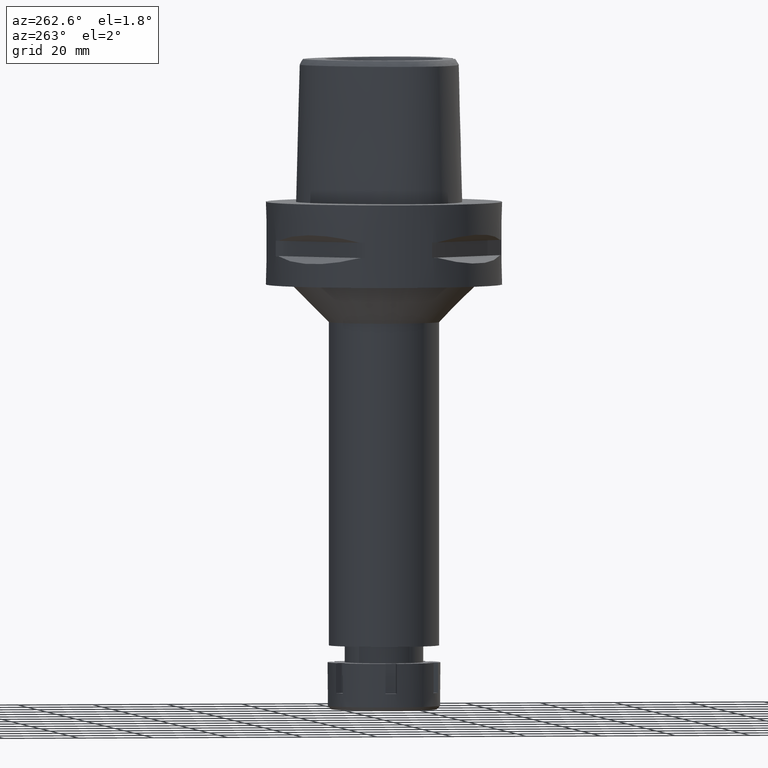
[diagram: clean part render]
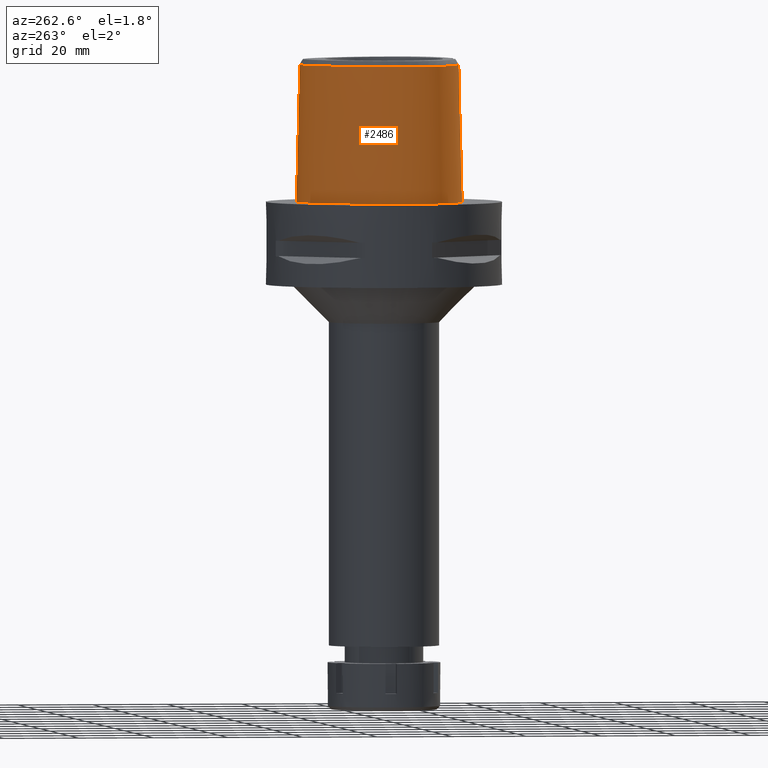
[diagram: same view with one face highlighted and labeled with its STEP entity id]
A machine part, auxiliary view. The second image highlights one B-rep face of the part: STEP entity #2486.
In plain terms, the highlighted face is a freeform B-spline surface patch.
Its self-contained STEP definition (entity closure, byte-faithful):
#63 = CARTESIAN_POINT ( 'NONE',  ( -4.467522189395715770, -19.48130287050597786, 36.52186244848002872 ) ) ;
#91 = CARTESIAN_POINT ( 'NONE',  ( -20.67704215115501043, -8.734985316449689563, 36.52186244848002872 ) ) ;
#97 = CARTESIAN_POINT ( 'NONE',  ( -2.095753548412734535, -20.13818364214428769, 18.96577014705994202 ) ) ;
#115 = CARTESIAN_POINT ( 'NONE',  ( -21.32871527670267042, -4.105831244393694845, 36.52186244848002872 ) ) ;
#125 = CARTESIAN_POINT ( 'NONE',  ( -0.5985508145680999981, 23.20171270136999908, 11.93048516854000063 ) ) ;
#143 = CARTESIAN_POINT ( 'NONE',  ( -14.22011356155801032, -16.41829364186329698, 36.52186244848002872 ) ) ;
#153 = CARTESIAN_POINT ( 'NONE',  ( -3.466483550181954865, -20.16833646136400304, 13.40542637770457013 ) ) ;
#154 = CARTESIAN_POINT ( 'NONE',  ( -21.36961487254999881, -0.3886498147151999927, 24.59140820454000220 ) ) ;
#179 = CARTESIAN_POINT ( 'NONE',  ( -2.647727988106880481, -20.26593689667690157, 12.42012271608527385 ) ) ;
#181 = CARTESIAN_POINT ( 'NONE',  ( -0.5821289161945000235, 22.88453074874000137, 24.59140820454000220 ) ) ;
#185 = B_SPLINE_CURVE_WITH_KNOTS ( 'NONE', 3,
 ( #824, #1692, #1740, #410 ),
 .UNSPECIFIED., .F., .F.,
 ( 4, 4 ),
 ( 0.0000000000000000000, 1.000000000000000000 ),
 .UNSPECIFIED. ) ;
#208 = CARTESIAN_POINT ( 'NONE',  ( -3.925407708630974657, -20.04099055260220297, 16.53138977182821279 ) ) ;
#210 = CARTESIAN_POINT ( 'NONE',  ( -17.80867301933000135, 10.28184204996999895, 11.93048516854000063 ) ) ;
#217 = CARTESIAN_POINT ( 'NONE',  ( -7.554234247045001308E-12, -20.67499999999999716, 5.943393925159998790E-14 ) ) ;
#245 = CARTESIAN_POINT ( 'NONE',  ( -3.646271025380023900, -20.14180172674367242, 13.73229968809414814 ) ) ;
#247 = CARTESIAN_POINT ( 'NONE',  ( -19.15132511369999690, -12.46323141685999936, 24.59140820454000220 ) ) ;
#257 = CARTESIAN_POINT ( 'NONE',  ( -1.721500287542000227E-11, 22.56201468012000078, 36.52186680743999858 ) ) ;
#265 = CARTESIAN_POINT ( 'NONE',  ( -21.97832647186835331, -0.2810937510600225453, 2.423607632943622359E-07 ) ) ;
#279 = CARTESIAN_POINT ( 'NONE',  ( -6.232237555787000893, -19.68961163810000059, 24.59140820454000220 ) ) ;
#311 = CARTESIAN_POINT ( 'NONE',  ( 0.6779535328322999765, -20.37023514802000435, 11.93048516854000063 ) ) ;
#342 = CARTESIAN_POINT ( 'NONE',  ( -6.175998544914000021, -19.37631762998000085, 37.25233124053000466 ) ) ;
#355 = VERTEX_POINT ( 'NONE', #440 ) ;
#395 = CARTESIAN_POINT ( 'NONE',  ( -14.36818022345999957, -16.67825710888000046, 24.59140820454000220 ) ) ;
#410 = CARTESIAN_POINT ( 'NONE',  ( 0.0000000000000000000, -20.18628283968999781, 19.55000000000000071 ) ) ;
#440 = CARTESIAN_POINT ( 'NONE',  ( 4.563474861933999607E-11, 23.47499999999000053, 5.643633708511000158E-14 ) ) ;
#453 = CARTESIAN_POINT ( 'NONE',  ( -2.187955111050589263, -20.13397228737159494, 18.90818030783799131 ) ) ;
#454 = CARTESIAN_POINT ( 'NONE',  ( 0.7042335231576000165, 23.15549812949000241, 11.93048516854000063 ) ) ;
#538 = CARTESIAN_POINT ( 'NONE',  ( -1.222079501496991627, -20.16967619644332643, 19.36182732690497588 ) ) ;
#539 = CARTESIAN_POINT ( 'NONE',  ( 0.7234356453963000089, 23.47140593137999787, -0.7304378674614999678 ) ) ;
#547 = ORIENTED_EDGE ( 'NONE', *, *, #4368, .F. ) ;
#564 = CARTESIAN_POINT ( 'NONE',  ( -0.8941136475783361126, -20.17742596329176763, 19.45229334933507204 ) ) ;
#565 = CARTESIAN_POINT ( 'NONE',  ( -7.259695358794000519, 20.78233551199999951, 24.59140820454000220 ) ) ;
#591 = CARTESIAN_POINT ( 'NONE',  ( -2.696415149898559793, -20.10825975497922613, 18.52316981035194488 ) ) ;
#592 = CARTESIAN_POINT ( 'NONE',  ( -20.09084467952999731, -11.59945458340000002, 11.93048516854000063 ) ) ;
#610 = CARTESIAN_POINT ( 'NONE',  ( -6.341471018134833493, -20.29812499400877712, 2.423607632943622359E-07 ) ) ;
#626 = CARTESIAN_POINT ( 'NONE',  ( -4.038031914720374260, -20.04584209172325870, 15.81781984753358117 ) ) ;
#627 = CARTESIAN_POINT ( 'NONE',  ( -20.46725037730999830, 4.555493625263999924, 11.93048516854000063 ) ) ;
#653 = CARTESIAN_POINT ( 'NONE',  ( -3.474550157058791999, -20.06258684786186919, 17.58509941784983965 ) ) ;
#654 = CARTESIAN_POINT ( 'NONE',  ( -10.55288401081999972, 18.94467581809000123, 11.93048516854000063 ) ) ;
#662 = CARTESIAN_POINT ( 'NONE',  ( -3.736722311398999796, -19.67781602443999844, 31.80000000000000071 ) ) ;
#682 = CARTESIAN_POINT ( 'NONE',  ( -3.698122373788957251, -20.13343971464041360, 13.84482020407118519 ) ) ;
#684 = CARTESIAN_POINT ( 'NONE',  ( -22.07548129577999774, -6.850245536156000625, -0.7304378674614999678 ) ) ;
#705 = CARTESIAN_POINT ( 'NONE',  ( -14.40795638492536135, 15.64093749606614381, 2.423607632943622359E-07 ) ) ;
#714 = CARTESIAN_POINT ( 'NONE',  ( -3.388781880795666002, -20.17907268769709006, 13.28211842278880184 ) ) ;
#736 = CARTESIAN_POINT ( 'NONE',  ( -22.24453907246621753, -4.100468750035296317, 2.423607632943622359E-07 ) ) ;
#749 = CARTESIAN_POINT ( 'NONE',  ( -1.592612062466888245, -20.34460894491111205, 11.77623291199284417 ) ) ;
#776 = CARTESIAN_POINT ( 'NONE',  ( -10.91263698716999997, -18.01320775626999904, 37.25233124053000466 ) ) ;
#805 = CARTESIAN_POINT ( 'NONE',  ( -1.035503055403640627, -20.37488775911208805, 11.54570873351807236 ) ) ;
#822 = ORIENTED_EDGE ( 'NONE', *, *, #2798, .F. ) ;
#824 = CARTESIAN_POINT ( 'NONE',  ( 2.041042029990999821E-08, -19.88004246002000031, 31.80000004972000127 ) ) ;
#832 = CARTESIAN_POINT ( 'NONE',  ( -16.77374378731999727, -15.44292467653000145, 11.93048516854000063 ) ) ;
#835 = ORIENTED_EDGE ( 'NONE', *, *, #2553, .T. ) ;
#855 = CARTESIAN_POINT ( 'NONE',  ( -1.758544761677518942, -20.33485355119310256, 11.85123508312661400 ) ) ;
#885 = CARTESIAN_POINT ( 'NONE',  ( -1.543048130379629068, -20.15993798682084659, 19.24453660913642850 ) ) ;
#916 = VERTEX_POINT ( 'NONE', #662 ) ;
#967 = EDGE_CURVE ( 'NONE', #5182, #2306, #2445, .T. ) ;
#1014 = CARTESIAN_POINT ( 'NONE',  ( -19.64947365372702492, -12.82525390268285470, 2.423607632943622359E-07 ) ) ;
#1016 = CARTESIAN_POINT ( 'NONE',  ( -4.757642277158934618, 21.67478330406939335, 36.52186244848002872 ) ) ;
#1021 = CARTESIAN_POINT ( 'NONE',  ( -3.788010122576975114, -20.11815763408464974, 14.06624340820780361 ) ) ;
#1022 = CARTESIAN_POINT ( 'NONE',  ( -4.868968364631999890, 21.95285523368999847, 24.59140820454000220 ) ) ;
#1030 = CARTESIAN_POINT ( 'NONE',  ( -2.503154198992822543, -19.81241979316389390, 31.80000012753036387 ) ) ;
#1038 = CARTESIAN_POINT ( 'NONE',  ( -2.113823672704807866, -20.67499999394337706, 2.423607632943622359E-07 ) ) ;
#1052 = CARTESIAN_POINT ( 'NONE',  ( -2.875757950341220504, -20.24102512592878966, 12.64823125461331088 ) ) ;
#1053 = CARTESIAN_POINT ( 'NONE',  ( -17.53318565138999929, 10.12278922543999826, 24.59140820454000220 ) ) ;
#1085 = CARTESIAN_POINT ( 'NONE',  ( -4.019649019913003052, -20.04316019033984375, 16.01163126943011150 ) ) ;
#1086 = CARTESIAN_POINT ( 'NONE',  ( -19.66427015006999923, -12.83600704949999916, -0.7304378674614999678 ) ) ;
#1095 = CARTESIAN_POINT ( 'NONE',  ( -3.671249123513567802, -19.60525173594972514, 34.94790829898666829 ) ) ;
#1109 = CARTESIAN_POINT ( 'NONE',  ( -3.830499027157479475, -20.11062698623148393, 14.18153512544075490 ) ) ;
#1111 = CARTESIAN_POINT ( 'NONE',  ( -21.99640702059999953, -0.2778990154045000160, -0.7304378674614999678 ) ) ;
#1137 = CARTESIAN_POINT ( 'NONE',  ( -3.408875187703607423, -20.17633333109293758, 13.31312751153604168 ) ) ;
#1141 = CARTESIAN_POINT ( 'NONE',  ( -18.58171406929999847, -14.18198046875000173, -0.7304378674614999678 ) ) ;
#1163 = ORIENTED_EDGE ( 'NONE', *, *, #3662, .T. ) ;
#1231 = CARTESIAN_POINT ( 'NONE',  ( -1.853278683559999918, -20.08023909530000140, 24.59140820454000220 ) ) ;
#1284 = CARTESIAN_POINT ( 'NONE',  ( -1.678454493252491408, -20.33967188086258204, 11.81405957882687474 ) ) ;
#1287 = ORIENTED_EDGE ( 'NONE', *, *, #967, .F. ) ;
#1311 = ORIENTED_EDGE ( 'NONE', *, *, #4064, .T. ) ;
#1332 = CARTESIAN_POINT ( 'NONE',  ( -1.768917262170803806, -20.15190475906382517, 19.14568281053294641 ) ) ;
#1373 = CARTESIAN_POINT ( 'NONE',  ( -21.07430010672943865, -0.4408303445193439418, 36.52186244848002872 ) ) ;
#1426 = CARTESIAN_POINT ( 'NONE',  ( -3.637738201363999835, -19.56971413236999879, 36.52186244848000030 ) ) ;
#1439 = EDGE_CURVE ( 'NONE', #4164, #916, #2082, .T. ) ;
#1440 = CARTESIAN_POINT ( 'NONE',  ( -3.744859968352797441, -20.12555785049270085, 13.95773689203815593 ) ) ;
#1442 = CARTESIAN_POINT ( 'NONE',  ( -7.099337616923000027, 20.50831363450999945, 37.25233124053000466 ) ) ;
#1456 = CARTESIAN_POINT ( 'NONE',  ( -3.736722311398999796, -19.67781602443999844, 31.80000000000000071 ) ) ;
#1466 = CARTESIAN_POINT ( 'NONE',  ( -3.024127618930105843, -20.22444760030277777, 12.80466032897654394 ) ) ;
#1467 = CARTESIAN_POINT ( 'NONE',  ( -22.26285557009000016, -4.100361500021000083, -0.7304378674614999678 ) ) ;
#1499 = CARTESIAN_POINT ( 'NONE',  ( -2.857836109605493391, -20.09902107152585415, 18.36973246307346130 ) ) ;
#1500 = CARTESIAN_POINT ( 'NONE',  ( -20.16779720104999996, 4.447573594930999796, 24.59140820454000220 ) ) ;
#1530 = CARTESIAN_POINT ( 'NONE',  ( -4.027530768677396900, -20.06783249596207952, 14.99855479653689372 ) ) ;
#1531 = CARTESIAN_POINT ( 'NONE',  ( -4.987110641244999698, 22.24795274023000147, 11.93048516854000063 ) ) ;
#1547 = CARTESIAN_POINT ( 'NONE',  ( -2.564517725711242591, 23.29328124403344091, 2.423607632943622359E-07 ) ) ;
#1558 = CARTESIAN_POINT ( 'NONE',  ( -3.704467467890636190, -20.04996865237293235, 17.13733399074673613 ) ) ;
#1559 = CARTESIAN_POINT ( 'NONE',  ( -20.65947727049000093, -8.729764289511999564, 37.25233124053000466 ) ) ;
#1581 = CARTESIAN_POINT ( 'NONE',  ( -9.438382639363001303E-13, -20.38876923348000147, 11.44999999999999929 ) ) ;
#1585 = CARTESIAN_POINT ( 'NONE',  ( -1.975954942194372732, -20.32065689222513782, 11.96260358355956122 ) ) ;
#1589 = CARTESIAN_POINT ( 'NONE',  ( 2.041042029990999821E-08, -19.88004246002000031, 31.80000004972000127 ) ) ;
#1598 = CARTESIAN_POINT ( 'NONE',  ( -9.438382639363001303E-13, -20.38876923348000147, 11.44999999999999929 ) ) ;
#1644 = CARTESIAN_POINT ( 'NONE',  ( -9.438382639363001303E-13, -20.38876923348000147, 11.44999999999999929 ) ) ;
#1646 = CARTESIAN_POINT ( 'NONE',  ( 0.6718639802176999964, -20.05378874147000445, 24.59140820454000220 ) ) ;
#1692 = CARTESIAN_POINT ( 'NONE',  ( 6.820927657154836449E-09, -19.98212988583318861, 27.71666688228307507 ) ) ;
#1735 = B_SPLINE_CURVE_WITH_KNOTS ( 'NONE', 3,
 ( #1589, #2292, #1030, #1874 ),
 .UNSPECIFIED., .F., .F.,
 ( 4, 4 ),
 ( 0.0000000000000000000, 1.000000000000000000 ),
 .UNSPECIFIED. ) ;
#1740 = CARTESIAN_POINT ( 'NONE',  ( 6.840928000218181351E-09, -20.08420636276216698, 23.63333344114142776 ) ) ;
#1768 = CARTESIAN_POINT ( 'NONE',  ( -22.05732873719482967, -6.847636717884158841, 2.423607632943622359E-07 ) ) ;
#1795 = CARTESIAN_POINT ( 'NONE',  ( -7.554234247045001308E-12, -20.67499999999999716, 5.943393925159998790E-14 ) ) ;
#1817 = CARTESIAN_POINT ( 'NONE',  ( -3.704239276368590961, -19.64128040965313460, 33.37395414949332917 ) ) ;
#1832 = CARTESIAN_POINT ( 'NONE',  ( -2.141634863661374677, -20.13611892945429105, 18.93776449056521827 ) ) ;
#1847 = CARTESIAN_POINT ( 'NONE',  ( -16.95889172217054863, -15.67838866708667567, 2.423607632943622359E-07 ) ) ;
#1851 = CARTESIAN_POINT ( 'NONE',  ( -19.88562090098590573, 4.345879983792177548, 36.52186244848002872 ) ) ;
#1864 = CARTESIAN_POINT ( 'NONE',  ( -4.049663826248561804, -20.05088590020227812, 15.56119206774791230 ) ) ;
#1865 = CARTESIAN_POINT ( 'NONE',  ( -0.5657070178208999378, 22.56734879610999656, 37.25233124053000466 ) ) ;
#1874 = CARTESIAN_POINT ( 'NONE',  ( -3.736722311398999796, -19.67781602443999844, 31.80000000000000071 ) ) ;
#1884 = CARTESIAN_POINT ( 'NONE',  ( -10.15538788052529462, 18.47129535094080310, 36.52186244848002872 ) ) ;
#1893 = CARTESIAN_POINT ( 'NONE',  ( -3.215358272888073632, -20.20174660046947679, 13.03391498473838617 ) ) ;
#1894 = CARTESIAN_POINT ( 'NONE',  ( -21.44619280695999919, -6.759806532739999874, 24.59140820454000220 ) ) ;
#1899 = CARTESIAN_POINT ( 'NONE',  ( -3.637738201363999835, -19.56971413236999879, 36.52186244848000030 ) ) ;
#1919 = CARTESIAN_POINT ( 'NONE',  ( -2.421503357389728883, -20.28648737493476872, 12.24279215501054452 ) ) ;
#1920 = CARTESIAN_POINT ( 'NONE',  ( -18.35112149282000260, -13.96357031254999903, 11.93048516854000063 ) ) ;
#1949 = CARTESIAN_POINT ( 'NONE',  ( -4.001055636210809396, -20.04208398455350348, 16.14154222857777654 ) ) ;
#1950 = CARTESIAN_POINT ( 'NONE',  ( -20.36913758037999855, -10.35391836273000088, 24.59140820454000220 ) ) ;
#1970 = CARTESIAN_POINT ( 'NONE',  ( -0.8548392418743139265, 23.47499999394298342, 2.423607632943622359E-07 ) ) ;
#1983 = CARTESIAN_POINT ( 'NONE',  ( -4.044848056823782123, -20.04744994059091923, 15.72117637690715064 ) ) ;
#1984 = CARTESIAN_POINT ( 'NONE',  ( -20.96392231271000028, -8.820258258517000627, 24.59140820454000220 ) ) ;
#2012 = CARTESIAN_POINT ( 'NONE',  ( -1.836486879099000102, -19.76356434104000215, 37.25233124053000466 ) ) ;
#2082 = B_SPLINE_CURVE_WITH_KNOTS ( 'NONE', 3,
 ( #1426, #1095, #1817, #1456 ),
 .UNSPECIFIED., .F., .F.,
 ( 4, 4 ),
 ( 0.0000000000000000000, 1.000000000000000000 ),
 .UNSPECIFIED. ) ;
#2115 = CARTESIAN_POINT ( 'NONE',  ( -1.886862292480999903, -20.71358860381999989, -0.7304378674614999678 ) ) ;
#2178 = CARTESIAN_POINT ( 'NONE',  ( -1.656252726927804231, -20.15609978928700841, 19.19765142506505029 ) ) ;
#2245 = CARTESIAN_POINT ( 'NONE',  ( -20.34961798031779168, -11.74885741883554680, 2.423607632943622359E-07 ) ) ;
#2256 = CARTESIAN_POINT ( 'NONE',  ( -1.320565687274571909, -20.16697761691573376, 19.32976498246028640 ) ) ;
#2257 = CARTESIAN_POINT ( 'NONE',  ( 0.6850314009189001352, 22.83959032759999985, 24.59140820454000220 ) ) ;
#2277 = CARTESIAN_POINT ( 'NONE',  ( -21.14970188363774994, -6.717195958887879570, 36.52186244848002872 ) ) ;
#2283 = CARTESIAN_POINT ( 'NONE',  ( -0.5036866637238484046, -20.18406862059044471, 19.52728785669996370 ) ) ;
#2284 = CARTESIAN_POINT ( 'NONE',  ( -17.25769828345000079, 9.963736400915999880, 37.25233124053000466 ) ) ;
#2292 = CARTESIAN_POINT ( 'NONE',  ( -1.251533273949759550, -19.88005341380098301, 31.80000012753036387 ) ) ;
#2306 = VERTEX_POINT ( 'NONE', #217 ) ;
#2316 = CARTESIAN_POINT ( 'NONE',  ( -3.081149392577086310, -20.08583124627777039, 18.14629112890345652 ) ) ;
#2317 = CARTESIAN_POINT ( 'NONE',  ( -10.34823228043999954, 18.70095487505000165, 24.59140820454000220 ) ) ;
#2346 = CARTESIAN_POINT ( 'NONE',  ( -2.621021505587231015, -20.11233874864635496, 18.58822781674971125 ) ) ;
#2347 = CARTESIAN_POINT ( 'NONE',  ( -21.62788386316000100, -4.104079499282999421, 24.59140820454000220 ) ) ;
#2369 = CARTESIAN_POINT ( 'NONE',  ( -3.623054736480796567, -20.05423874947348040, 17.31100359227515995 ) ) ;
#2371 = CARTESIAN_POINT ( 'NONE',  ( -2.568271206743999890, 23.31126238853000032, -0.7304378674614999678 ) ) ;
#2405 = CARTESIAN_POINT ( 'NONE',  ( -3.732557508995194340, -20.04859144260194626, 17.07180291399456351 ) ) ;
#2406 = CARTESIAN_POINT ( 'NONE',  ( -20.94844326296000148, -10.61175397189999892, -0.7304378674614999678 ) ) ;
#2425 = CARTESIAN_POINT ( 'NONE',  ( -20.74942740306294553, 4.657187497934072162, 2.423607632943622359E-07 ) ) ;
#2437 = CARTESIAN_POINT ( 'NONE',  ( -2.841055161951215435, -20.10000556631501212, 18.38634273631039306 ) ) ;
#2445 = LINE ( 'NONE', #1598, #2612 ) ;
#2453 = CARTESIAN_POINT ( 'NONE',  ( -18.06826687999996750, 10.43171874696322732, 2.423607632943622359E-07 ) ) ;
#2465 = CARTESIAN_POINT ( 'NONE',  ( -0.5047993661866043702, -20.38876923348000503, 11.44999999999999929 ) ) ;
#2486 = ADVANCED_FACE ( 'NONE', ( #2634 ), #3425, .T. ) ;
#2503 = VECTOR ( 'NONE', #5213, 999.9999999999998863 ) ;
#2553 = EDGE_CURVE ( 'NONE', #4164, #3212, #3381, .T. ) ;
#2607 = CARTESIAN_POINT ( 'NONE',  ( 0.4441906931417999860, 22.53710756543000215, 37.25233124053000466 ) ) ;
#2612 = VECTOR ( 'NONE', #3320, 1000.000000000000114 ) ;
#2634 = FACE_OUTER_BOUND ( 'NONE', #4764, .T. ) ;
#2645 = CARTESIAN_POINT ( 'NONE',  ( -21.55524825426159907, -8.996025388892533670, 2.423607632943622359E-07 ) ) ;
#2684 = CARTESIAN_POINT ( 'NONE',  ( 0.0000000000000000000, -20.18628283968999781, 19.55000000000000071 ) ) ;
#2704 = CARTESIAN_POINT ( 'NONE',  ( -17.90324032097083062, -13.53935111955632919, 36.52186244848002872 ) ) ;
#2727 = CARTESIAN_POINT ( 'NONE',  ( -2.376843896516814159, 22.39422508474424234, 36.52186244848003582 ) ) ;
#2733 = CARTESIAN_POINT ( 'NONE',  ( -3.755562140673041061, -20.12374194796142390, 13.98397501487569272 ) ) ;
#2735 = CARTESIAN_POINT ( 'NONE',  ( -21.76083705137000024, -6.805026034448000694, 11.93048516854000063 ) ) ;
#2767 = CARTESIAN_POINT ( 'NONE',  ( -3.738021026999557073, -20.04832921641929744, 17.05876513949581508 ) ) ;
#2768 = CARTESIAN_POINT ( 'NONE',  ( -19.40779763188999851, -12.64961923318000103, 11.93048516854000063 ) ) ;
#2798 = EDGE_CURVE ( 'NONE', #4812, #3361, #185, .T. ) ;
#2800 = CARTESIAN_POINT ( 'NONE',  ( -3.848403410397718716, -20.04310851184500208, 16.79149714040716290 ) ) ;
#2801 = CARTESIAN_POINT ( 'NONE',  ( -2.373090257802999758, 22.37624318494999542, 37.25233124053000466 ) ) ;
#2816 = B_SPLINE_CURVE_WITH_KNOTS ( 'NONE', 3,
 ( #2684, #4321, #2283, #564, #4400, #538, #2256, #4839, #4735, #5180, #3976, #885, #2178, #1332, #3479, #4761, #97, #1832, #453, #4955, #4512, #4124, #3277, #2346, #591, #3165, #4541, #2437, #2856, #1499, #2316, #4888, #653, #5284, #2369, #4032, #3226, #1558, #4864, #2405, #2767, #4089, #2800, #208, #1949, #1085, #626, #1983, #3711, #1864, #3680, #5374, #1530, #4481, #4979, #3252, #1109, #1021, #4924, #2733, #2826, #1440, #682, #245, #4451, #4575, #153, #5400, #1137, #714, #4155, #3619, #1893, #5312, #1466, #4062, #3594, #3191, #1052, #3646, #179, #1919, #5339, #1585, #2973, #855, #1284, #5483, #749, #3339, #4660, #3738, #805, #2465, #1644 ),
 .UNSPECIFIED., .F., .F.,
 ( 4, 2, 2, 1, 1, 1, 2, 2, 2, 2, 1, 2, 2, 2, 1, 1, 1, 2, 2, 2, 2, 2, 1, 1, 2, 2, 2, 2, 1, 2, 2, 2, 2, 1, 1, 1, 2, 2, 2, 2, 1, 2, 2, 2, 1, 1, 1, 2, 2, 2, 2, 2, 1, 1, 2, 2, 4 ),
 ( 0.0000000000000000000, 0.06249999999998544220, 0.09374999999997815636, 0.1093749999999746453, 0.1171874999999727857, 0.1210937499999717309, 0.1230468749999713007, 0.1249999999999708705, 0.1562499999999675537, 0.1718749999999661104, 0.1796874999999655276, 0.1835937499999650002, 0.1874999999999644729, 0.2187499999999620304, 0.2343749999999608369, 0.2421874999999600042, 0.2460937499999595324, 0.2480468749999593103, 0.2499999999999590883, 0.3124999999999567568, 0.3437499999999555911, 0.3593749999999545364, 0.3671874999999544253, 0.3710937499999544253, 0.3730468749999543698, 0.3749999999999542588, 0.4374999999999537592, 0.4687499999999535372, 0.4843749999999534261, 0.4921874999999537592, 0.4999999999999541478, 0.5624999999999561462, 0.5937499999999571454, 0.6093749999999574785, 0.6171874999999575895, 0.6210937499999577005, 0.6230468749999579225, 0.6249999999999581446, 0.6562499999999631406, 0.6718749999999655831, 0.6796874999999669154, 0.6835937499999675815, 0.6874999999999682476, 0.7187499999999726885, 0.7343749999999749090, 0.7421874999999762412, 0.7460937499999769074, 0.7480468749999772404, 0.7499999999999774625, 0.8124999999999859002, 0.8437499999999900080, 0.8593749999999920064, 0.8671874999999930056, 0.8710937499999933387, 0.8730468749999935607, 0.8749999999999937828, 1.000000000000000000 ),
 .UNSPECIFIED. ) ;
#2826 = CARTESIAN_POINT ( 'NONE',  ( -3.748882549353685700, -20.12487725615873657, 13.96753193210128074 ) ) ;
#2827 = CARTESIAN_POINT ( 'NONE',  ( -21.68301094657000050, -0.3332744150599000199, 11.93048516854000063 ) ) ;
#2856 = CARTESIAN_POINT ( 'NONE',  ( -2.852856104025017103, -20.09931387729060859, 18.37467926461868473 ) ) ;
#2857 = CARTESIAN_POINT ( 'NONE',  ( 0.6657744276031000163, -19.73734233492000101, 37.25233124053000466 ) ) ;
#2947 = CARTESIAN_POINT ( 'NONE',  ( 0.4439216874955000391, -19.74161820990000393, 37.25233124053000466 ) ) ;
#2973 = CARTESIAN_POINT ( 'NONE',  ( -1.812541018718141439, -20.33144879143497263, 11.87771303033273718 ) ) ;
#3025 = CARTESIAN_POINT ( 'NONE',  ( 0.4696382016660000103, 23.16972797969999931, 11.93048516854000063 ) ) ;
#3051 = CARTESIAN_POINT ( 'NONE',  ( 0.4569144474039000259, 22.85341777256000029, 24.59140820454000220 ) ) ;
#3092 = CARTESIAN_POINT ( 'NONE',  ( -7.108589416785252801, 20.52412325828516160, 36.52186244848002872 ) ) ;
#3109 = LINE ( 'NONE', #4816, #2503 ) ;
#3155 = CARTESIAN_POINT ( 'NONE',  ( -20.93173251657169232, -10.60431640378334350, 2.423607632943622359E-07 ) ) ;
#3158 = CARTESIAN_POINT ( 'NONE',  ( -17.27359245833062573, 9.972912913897872045, 36.52186244848002872 ) ) ;
#3165 = CARTESIAN_POINT ( 'NONE',  ( -2.781497320433821585, -20.10345565782014887, 18.44409576488585145 ) ) ;
#3166 = CARTESIAN_POINT ( 'NONE',  ( -14.17879753344000093, 15.44741190897999950, 11.93048516854000063 ) ) ;
#3191 = CARTESIAN_POINT ( 'NONE',  ( -2.887412005234935464, -20.23974548682599917, 12.66003157092542786 ) ) ;
#3192 = CARTESIAN_POINT ( 'NONE',  ( -19.54161154016999902, -11.28235468133999930, 37.25233124053000466 ) ) ;
#3212 = VERTEX_POINT ( 'NONE', #257 ) ;
#3226 = CARTESIAN_POINT ( 'NONE',  ( -3.686560471764761093, -20.05088322548416713, 17.17709135335505266 ) ) ;
#3227 = CARTESIAN_POINT ( 'NONE',  ( -5.105252917856999417, 22.54305024678000180, -0.7304378674614999678 ) ) ;
#3252 = CARTESIAN_POINT ( 'NONE',  ( -3.862607746689282973, -20.10460055501470933, 14.28038032241845912 ) ) ;
#3253 = CARTESIAN_POINT ( 'NONE',  ( -4.750826088020000171, 21.65775772713999814, 37.25233124053000466 ) ) ;
#3265 = CARTESIAN_POINT ( 'NONE',  ( -7.571159431281500929, 21.31457030725399449, 2.423607632943622359E-07 ) ) ;
#3277 = CARTESIAN_POINT ( 'NONE',  ( -2.467128207654248229, -20.12044499745018555, 18.71456023906639032 ) ) ;
#3278 = CARTESIAN_POINT ( 'NONE',  ( -20.07948473908000153, -10.22500055815000053, 37.25233124053000466 ) ) ;
#3320 = DIRECTION ( 'NONE',  ( -5.771468541057828828E-13, -0.02499051295389925070, -0.9996876883618708298 ) ) ;
#3339 = CARTESIAN_POINT ( 'NONE',  ( -1.572984596532724044, -20.34569619827908582, 11.76794029727431656 ) ) ;
#3361 = VERTEX_POINT ( 'NONE', #3690 ) ;
#3367 = CARTESIAN_POINT ( 'NONE',  ( -11.23887130413999991, -18.91049776458999787, -0.7304378674614999678 ) ) ;
#3381 = B_SPLINE_CURVE_WITH_KNOTS ( 'NONE', 3,
 ( #4023, #63, #4831, #3996, #143, #5247, #2704, #5223, #3971, #4421, #91, #2277, #115, #1373, #1851, #3158, #4858, #1884, #3092, #1016, #2727, #4446, #5306 ),
 .UNSPECIFIED., .F., .F.,
 ( 4, 1, 1, 1, 1, 1, 1, 1, 1, 1, 1, 1, 1, 1, 1, 1, 1, 1, 1, 1, 4 ),
 ( 0.0000000000000000000, 0.03580973941722228465, 0.1234633994701829079, 0.1672902294965054604, 0.2111170595230384139, 0.2549438895495713120, 0.2768573045626799844, 0.2987707195758939616, 0.3206841345892129658, 0.3425975496024267763, 0.3864243796288545640, 0.4302512096552822962, 0.4740780396817100839, 0.5617316997346707419, 0.6493853597876314554, 0.7370390198404869198, 0.8246926798933423841, 0.8685195099198753654, 0.9123463399463136447, 0.9561731699727623601, 1.000000000000000000 ),
 .UNSPECIFIED. ) ;
#3425 = B_SPLINE_SURFACE_WITH_KNOTS ( 'NONE', 3, 3, ( 
 ( #539, #454, #2257, #5156 ),
 ( #3977, #3025, #3051, #2607 ),
 ( #4344, #125, #181, #1865 ),
 ( #2371, #3712, #5285, #2801 ),
 ( #3227, #1531, #1022, #3253 ),
 ( #4090, #4542, #565, #1442 ),
 ( #4033, #654, #2317, #3681 ),
 ( #5375, #3166, #5313, #3595 ),
 ( #4889, #210, #1053, #2284 ),
 ( #4002, #627, #1500, #4956 ),
 ( #1111, #2827, #154, #5401 ),
 ( #1467, #4865, #2347, #4925 ),
 ( #684, #2735, #1894, #4452 ),
 ( #3621, #4514, #1984, #1559 ),
 ( #2406, #4125, #1950, #3278 ),
 ( #4980, #592, #4063, #3192 ),
 ( #1086, #2768, #247, #4483 ),
 ( #1141, #1920, #4428, #3647 ),
 ( #5341, #832, #5456, #5130 ),
 ( #5484, #3430, #395, #4264 ),
 ( #3367, #4632, #4240, #776 ),
 ( #4156, #4213, #279, #342 ),
 ( #2115, #3739, #1231, #2012 ),
 ( #4661, #3825, #4688, #2947 ),
 ( #5426, #311, #1646, #2857 ) ),
 .UNSPECIFIED., .F., .F., .F.,
 ( 4, 1, 1, 1, 1, 1, 1, 1, 1, 1, 1, 1, 1, 1, 1, 1, 1, 1, 1, 1, 1, 1, 4 ),
 ( 4, 4 ),
 ( -0.01173777939045999967, 0.0000000000000000000, 0.04166666666736999758, 0.08333333333399001175, 0.1250000000005999923, 0.1666666666673000119, 0.2500000000004999889, 0.3333333333337000215, 0.4166666666670000296, 0.5000000000002999823, 0.5416666666668999985, 0.5833333333335000148, 0.6250000000001000311, 0.6458333333333999837, 0.6666666666667999674, 0.6875000000001000311, 0.7083333333333000637, 0.7500000000000000000, 0.7916666666667000474, 0.8333333333332000326, 0.9166666666664999852, 1.000000000000000000, 1.008985696609000060 ),
 ( -3.552507898962999980E-09, 1.000000181178000158 ),
 .UNSPECIFIED. ) ;
#3430 = CARTESIAN_POINT ( 'NONE',  ( -14.52531259849000023, -16.95413742164000226, 11.93048516854000063 ) ) ;
#3479 = CARTESIAN_POINT ( 'NONE',  ( -1.944872162930882276, -20.14473830020673617, 19.05307826098888668 ) ) ;
#3594 = CARTESIAN_POINT ( 'NONE',  ( -2.904838724128858019, -20.23782704190357506, 12.67778573503153794 ) ) ;
#3595 = CARTESIAN_POINT ( 'NONE',  ( -13.69241955306999969, 15.03666371579999961, 37.25233124053000466 ) ) ;
#3619 = CARTESIAN_POINT ( 'NONE',  ( -3.294464282139184963, -20.19175818983865511, 13.14063372506641514 ) ) ;
#3621 = CARTESIAN_POINT ( 'NONE',  ( -21.57281239714000165, -9.001246196528999377, -0.7304378674614999678 ) ) ;
#3646 = CARTESIAN_POINT ( 'NONE',  ( -2.870809693610435254, -20.24156730632853396, 12.64324605247011135 ) ) ;
#3647 = CARTESIAN_POINT ( 'NONE',  ( -17.88993633987000109, -13.52675000015000073, 37.25233124053000466 ) ) ;
#3662 = EDGE_CURVE ( 'NONE', #355, #2306, #4706, .T. ) ;
#3680 = CARTESIAN_POINT ( 'NONE',  ( -4.050018014422889223, -20.05167593067614717, 15.52805627100567243 ) ) ;
#3681 = CARTESIAN_POINT ( 'NONE',  ( -10.14358055006000114, 18.45723393201000206, 37.25233124053000466 ) ) ;
#3690 = CARTESIAN_POINT ( 'NONE',  ( 0.0000000000000000000, -20.18628283968999781, 19.55000000000000071 ) ) ;
#3711 = CARTESIAN_POINT ( 'NONE',  ( -4.048193638326211818, -20.04945813672254573, 15.62509932612366192 ) ) ;
#3712 = CARTESIAN_POINT ( 'NONE',  ( -2.503210890429999669, 22.99958932067000106, 11.93048516854000063 ) ) ;
#3738 = CARTESIAN_POINT ( 'NONE',  ( -1.554881956805415966, -20.34669101430224458, 11.76035872671697646 ) ) ;
#3739 = CARTESIAN_POINT ( 'NONE',  ( -1.870070488020000088, -20.39691384955999709, 11.93048516854000063 ) ) ;
#3825 = CARTESIAN_POINT ( 'NONE',  ( 0.4520368072122999958, -20.37458452962999900, 11.93048516854000063 ) ) ;
#3971 = CARTESIAN_POINT ( 'NONE',  ( -19.55745547456251998, -11.29150218116124016, 36.52186244848002872 ) ) ;
#3976 = CARTESIAN_POINT ( 'NONE',  ( -1.533377486154564595, -20.16026360294687336, 19.24851053760753672 ) ) ;
#3977 = CARTESIAN_POINT ( 'NONE',  ( 0.4823619559280000191, 23.48603818683000100, -0.7304378674614999678 ) ) ;
#3996 = CARTESIAN_POINT ( 'NONE',  ( -10.91891098964673112, -18.03046406390340906, 36.52186244848002872 ) ) ;
#4002 = CARTESIAN_POINT ( 'NONE',  ( -20.76670355358000108, 4.663413655595999963, -0.7304378674614999678 ) ) ;
#4021 = CARTESIAN_POINT ( 'NONE',  ( -18.56841064701205113, -14.16937987863448711, 2.423607632943622359E-07 ) ) ;
#4023 = CARTESIAN_POINT ( 'NONE',  ( -3.637738201363999835, -19.56971413236999879, 36.52186244848000030 ) ) ;
#4032 = CARTESIAN_POINT ( 'NONE',  ( -3.649474620159824045, -20.05281468735726946, 17.25706831816981435 ) ) ;
#4033 = CARTESIAN_POINT ( 'NONE',  ( -10.75753574118999900, 19.18839676114000170, -0.7304378674614999678 ) ) ;
#4062 = CARTESIAN_POINT ( 'NONE',  ( -2.945118222697283628, -20.23335776654023377, 12.71958560101058744 ) ) ;
#4063 = CARTESIAN_POINT ( 'NONE',  ( -19.81622810984999816, -11.44090463236999966, 24.59140820454000220 ) ) ;
#4064 = EDGE_CURVE ( 'NONE', #3212, #355, #3109, .T. ) ;
#4089 = CARTESIAN_POINT ( 'NONE',  ( -3.740129524201758926, -20.04822853724979126, 17.05370687140962360 ) ) ;
#4090 = CARTESIAN_POINT ( 'NONE',  ( -7.580410842536000615, 21.33037926697000231, -0.7304378674614999678 ) ) ;
#4124 = CARTESIAN_POINT ( 'NONE',  ( -2.360389010909440088, -20.12578017861218527, 18.79373387522311489 ) ) ;
#4125 = CARTESIAN_POINT ( 'NONE',  ( -20.65879042167000179, -10.48283616732000034, 11.93048516854000063 ) ) ;
#4155 = CARTESIAN_POINT ( 'NONE',  ( -3.377353639916780725, -20.18061854612785311, 13.26476903757058423 ) ) ;
#4156 = CARTESIAN_POINT ( 'NONE',  ( -6.344715577531000683, -20.31619965431999830, -0.7304378674614999678 ) ) ;
#4164 = VERTEX_POINT ( 'NONE', #1899 ) ;
#4213 = CARTESIAN_POINT ( 'NONE',  ( -6.288476566658999900, -20.00290564620999945, 11.93048516854000063 ) ) ;
#4240 = CARTESIAN_POINT ( 'NONE',  ( -11.02138175949999876, -18.31230442570999983, 24.59140820454000220 ) ) ;
#4264 = CARTESIAN_POINT ( 'NONE',  ( -14.21104784842999891, -16.40237679612999955, 37.25233124053000466 ) ) ;
#4321 = CARTESIAN_POINT ( 'NONE',  ( -0.2473412322776365746, -20.18628283969000847, 19.55000000000000071 ) ) ;
#4344 = CARTESIAN_POINT ( 'NONE',  ( -0.6149727129416998617, 23.51889465398999945, -0.7304378674614999678 ) ) ;
#4368 = EDGE_CURVE ( 'NONE', #3361, #5182, #2816, .T. ) ;
#4400 = CARTESIAN_POINT ( 'NONE',  ( -1.025211814383773401, -20.17465818941732536, 19.42048404905371228 ) ) ;
#4421 = CARTESIAN_POINT ( 'NONE',  ( -20.09619618740779501, -10.23243843868348968, 36.52186244848002872 ) ) ;
#4428 = CARTESIAN_POINT ( 'NONE',  ( -18.12052891633999963, -13.74516015634999988, 24.59140820454000220 ) ) ;
#4446 = CARTESIAN_POINT ( 'NONE',  ( -0.7901461696974704241, 22.56201478746276834, 36.52186244848003582 ) ) ;
#4451 = CARTESIAN_POINT ( 'NONE',  ( -3.553766164799819105, -20.15576042543310464, 13.55638603582566937 ) ) ;
#4452 = CARTESIAN_POINT ( 'NONE',  ( -21.13154856254999814, -6.714587031031999942, 37.25233124053000466 ) ) ;
#4481 = CARTESIAN_POINT ( 'NONE',  ( -3.952964639632953858, -20.08622609015964500, 14.60890045225500877 ) ) ;
#4483 = CARTESIAN_POINT ( 'NONE',  ( -18.89485259550999885, -12.27684360054000123, 37.25233124053000466 ) ) ;
#4512 = CARTESIAN_POINT ( 'NONE',  ( -2.236225399043141771, -20.13170464962382411, 18.87669531694536929 ) ) ;
#4514 = CARTESIAN_POINT ( 'NONE',  ( -21.26836735493000319, -8.910752227523000002, 11.93048516854000063 ) ) ;
#4541 = CARTESIAN_POINT ( 'NONE',  ( -2.823299992936083580, -20.10104229143708210, 18.40378355436393676 ) ) ;
#4542 = CARTESIAN_POINT ( 'NONE',  ( -7.420053100665000123, 21.05635738948000224, 11.93048516854000063 ) ) ;
#4575 = CARTESIAN_POINT ( 'NONE',  ( -3.520475118940467052, -20.16064927175201760, 13.49656734864566054 ) ) ;
#4593 = CARTESIAN_POINT ( 'NONE',  ( -5.098437015021700880, 22.52602538498401685, 2.423607632943622359E-07 ) ) ;
#4594 = ORIENTED_EDGE ( 'NONE', *, *, #1439, .F. ) ;
#4632 = CARTESIAN_POINT ( 'NONE',  ( -11.13012653182000022, -18.61140109514999708, 11.93048516854000063 ) ) ;
#4660 = CARTESIAN_POINT ( 'NONE',  ( -1.559921522258865600, -20.34641501698341060, 11.76246137009505688 ) ) ;
#4661 = CARTESIAN_POINT ( 'NONE',  ( 0.4560943670707999775, -20.69106768949000141, -0.7304378674614999678 ) ) ;
#4688 = CARTESIAN_POINT ( 'NONE',  ( 0.4479792473538999897, -20.05810136975999924, 24.59140820454000220 ) ) ;
#4706 = B_SPLINE_CURVE_WITH_KNOTS ( 'NONE', 3,
 ( #5360, #1970, #1547, #4593, #3265, #4970, #705, #2453, #2425, #265, #736, #1768, #2645, #3155, #2245, #1014, #4021, #1847, #4881, #5219, #610, #1038, #1795 ),
 .UNSPECIFIED., .F., .F.,
 ( 4, 1, 1, 1, 1, 1, 1, 1, 1, 1, 1, 1, 1, 1, 1, 1, 1, 1, 1, 1, 4 ),
 ( 0.0000000000000000000, 0.04166666666736999758, 0.08333333333399001175, 0.1250000000005999923, 0.1666666666673000119, 0.2500000000004999889, 0.3333333333337000215, 0.4166666666670000296, 0.5000000000002999823, 0.5416666666668999985, 0.5833333333335000148, 0.6250000000001000311, 0.6458333333333999837, 0.6666666666667999674, 0.6875000000001000311, 0.7083333333333000637, 0.7500000000000000000, 0.7916666666667000474, 0.8333333333332000326, 0.9166666666664999852, 1.000000000000000000 ),
 .UNSPECIFIED. ) ;
#4735 = CARTESIAN_POINT ( 'NONE',  ( -1.492522727688395223, -20.16161937968067619, 19.26502569008747656 ) ) ;
#4761 = CARTESIAN_POINT ( 'NONE',  ( -2.004675599387955032, -20.14220382833398659, 19.01976680093502381 ) ) ;
#4764 = EDGE_LOOP ( 'NONE', ( #1287, #547, #822, #5065, #4594, #835, #1311, #1163 ) ) ;
#4812 = VERTEX_POINT ( 'NONE', #5012 ) ;
#4816 = CARTESIAN_POINT ( 'NONE',  ( -1.721500287542000227E-11, 22.56201468012000078, 36.52186680743999858 ) ) ;
#4831 = CARTESIAN_POINT ( 'NONE',  ( -7.300578999876186970, -19.07170748891588019, 36.52186244848002872 ) ) ;
#4839 = CARTESIAN_POINT ( 'NONE',  ( -1.435263460292225846, -20.16346600381253751, 19.28743623777308613 ) ) ;
#4858 = CARTESIAN_POINT ( 'NONE',  ( -13.70645028111398389, 15.04851272300334486, 36.52186244848002872 ) ) ;
#4864 = CARTESIAN_POINT ( 'NONE',  ( -3.724287987559120161, -20.04899117660409402, 17.09139312267855715 ) ) ;
#4865 = CARTESIAN_POINT ( 'NONE',  ( -21.94536971662000369, -4.102220499651999752, 11.93048516854000063 ) ) ;
#4881 = CARTESIAN_POINT ( 'NONE',  ( -14.67337964118345184, -17.21410155721954638, 2.423607632943622359E-07 ) ) ;
#4888 = CARTESIAN_POINT ( 'NONE',  ( -3.258446753581170530, -20.07522384658358305, 17.91983021284892885 ) ) ;
#4889 = CARTESIAN_POINT ( 'NONE',  ( -18.08416038726999986, 10.44089487449999964, -0.7304378674614999678 ) ) ;
#4924 = CARTESIAN_POINT ( 'NONE',  ( -3.765489374949849033, -20.12204791086962530, 14.00864527312713648 ) ) ;
#4925 = CARTESIAN_POINT ( 'NONE',  ( -21.31039800969000098, -4.105938498912999002, 37.25233124053000466 ) ) ;
#4955 = CARTESIAN_POINT ( 'NONE',  ( -2.218923952808333322, -20.13252298611806879, 18.88809933006110242 ) ) ;
#4956 = CARTESIAN_POINT ( 'NONE',  ( -19.86834402478000072, 4.339653564598999758, 37.25233124053000466 ) ) ;
#4970 = CARTESIAN_POINT ( 'NONE',  ( -10.74572890667418967, 19.17433593283710636, 2.423607632943622359E-07 ) ) ;
#4979 = CARTESIAN_POINT ( 'NONE',  ( -3.921269265871302423, -20.09311890564810099, 14.47775228273878056 ) ) ;
#4980 = CARTESIAN_POINT ( 'NONE',  ( -20.36546124921000001, -11.75800453442999860, -0.7304378674614999678 ) ) ;
#4985 = EDGE_CURVE ( 'NONE', #4812, #916, #1735, .T. ) ;
#5012 = CARTESIAN_POINT ( 'NONE',  ( 2.041042029990999821E-08, -19.88004246002000031, 31.80000004972000127 ) ) ;
#5065 = ORIENTED_EDGE ( 'NONE', *, *, #4985, .T. ) ;
#5130 = CARTESIAN_POINT ( 'NONE',  ( -16.38077673392000122, -14.94316435986999991, 37.25233124053000466 ) ) ;
#5156 = CARTESIAN_POINT ( 'NONE',  ( 0.6658292786802000318, 22.52368252571000085, 37.25233124053000466 ) ) ;
#5180 = CARTESIAN_POINT ( 'NONE',  ( -1.517038990532497911, -20.16080850842839212, 19.25515252244227682 ) ) ;
#5182 = VERTEX_POINT ( 'NONE', #1581 ) ;
#5213 = DIRECTION ( 'NONE',  ( 1.720342585915959424E-12, 0.02499051290962944413, -0.9996876883629776112 ) ) ;
#5219 = CARTESIAN_POINT ( 'NONE',  ( -11.23259756519374619, -18.89324218178149195, 2.423607632943622359E-07 ) ) ;
#5223 = CARTESIAN_POINT ( 'NONE',  ( -18.90964971338392431, -12.28759719904566161, 36.52186244848002872 ) ) ;
#5247 = CARTESIAN_POINT ( 'NONE',  ( -16.39211280191427633, -14.95758113318847649, 36.52186244848002872 ) ) ;
#5284 = CARTESIAN_POINT ( 'NONE',  ( -3.538328569005190438, -20.05892019842455554, 17.47427695038955520 ) ) ;
#5285 = CARTESIAN_POINT ( 'NONE',  ( -2.438150574115999891, 22.68791625281000179, 24.59140820454000220 ) ) ;
#5306 = CARTESIAN_POINT ( 'NONE',  ( -1.721500287542000227E-11, 22.56201468012000078, 36.52186680743999858 ) ) ;
#5312 = CARTESIAN_POINT ( 'NONE',  ( -3.089131642920903253, -20.21685897408081800, 12.88004451868228628 ) ) ;
#5313 = CARTESIAN_POINT ( 'NONE',  ( -13.93560854325999898, 15.24203781238999866, 24.59140820454000220 ) ) ;
#5339 = CARTESIAN_POINT ( 'NONE',  ( -2.086814383349709257, -20.31269213283799147, 12.02647857451945335 ) ) ;
#5341 = CARTESIAN_POINT ( 'NONE',  ( -16.97022731400999973, -15.69280483484999955, -0.7304378674614999678 ) ) ;
#5360 = CARTESIAN_POINT ( 'NONE',  ( 4.563474861933999607E-11, 23.47499999999000053, 5.643633708511000158E-14 ) ) ;
#5374 = CARTESIAN_POINT ( 'NONE',  ( -4.049848995936168095, -20.05861656952082939, 15.25314035233463272 ) ) ;
#5375 = CARTESIAN_POINT ( 'NONE',  ( -14.42198652363000022, 15.65278600556999855, -0.7304378674614999678 ) ) ;
#5400 = CARTESIAN_POINT ( 'NONE',  ( -3.438474044883808922, -20.17226853620340776, 13.35950353147640079 ) ) ;
#5401 = CARTESIAN_POINT ( 'NONE',  ( -21.05621879852000333, -0.4440252143705000210, 37.25233124053000466 ) ) ;
#5426 = CARTESIAN_POINT ( 'NONE',  ( 0.6840430854469000677, -20.68668155455999980, -0.7304378674614999678 ) ) ;
#5456 = CARTESIAN_POINT ( 'NONE',  ( -16.57726026062000102, -15.19304451819999890, 24.59140820454000220 ) ) ;
#5483 = CARTESIAN_POINT ( 'NONE',  ( -1.638635025840234016, -20.34200884320538094, 11.79610711465440431 ) ) ;
#5484 = CARTESIAN_POINT ( 'NONE',  ( -14.68244497352000089, -17.23001773438999962, -0.7304378674614999678 ) ) ;